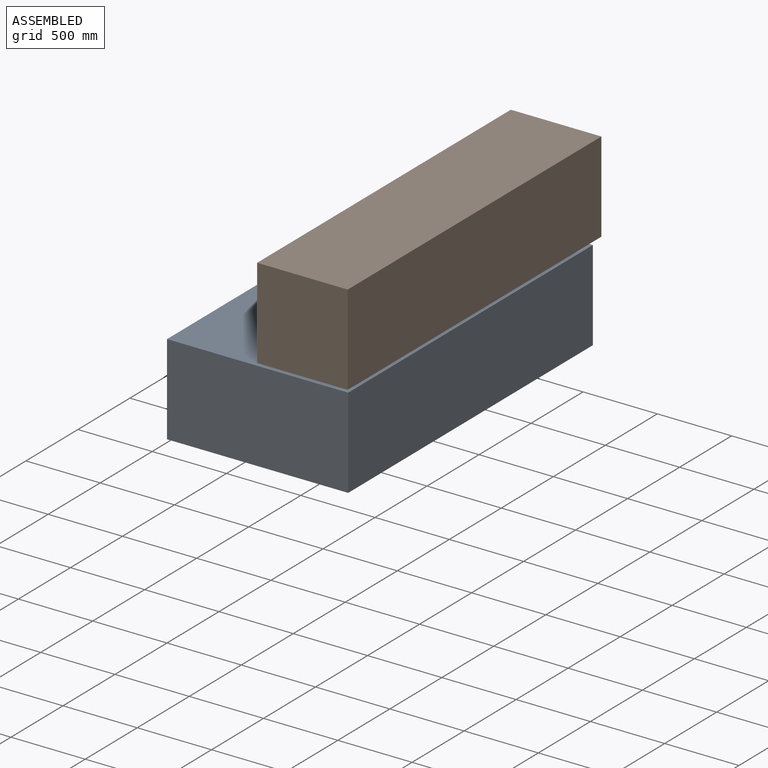
[diagram: assembled view]
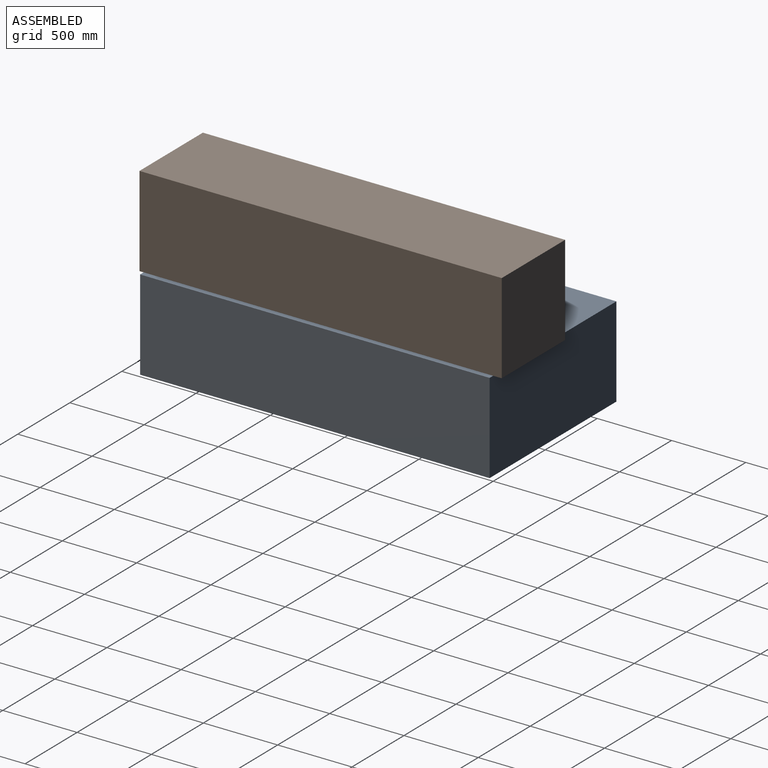
[diagram: assembled view, second angle]
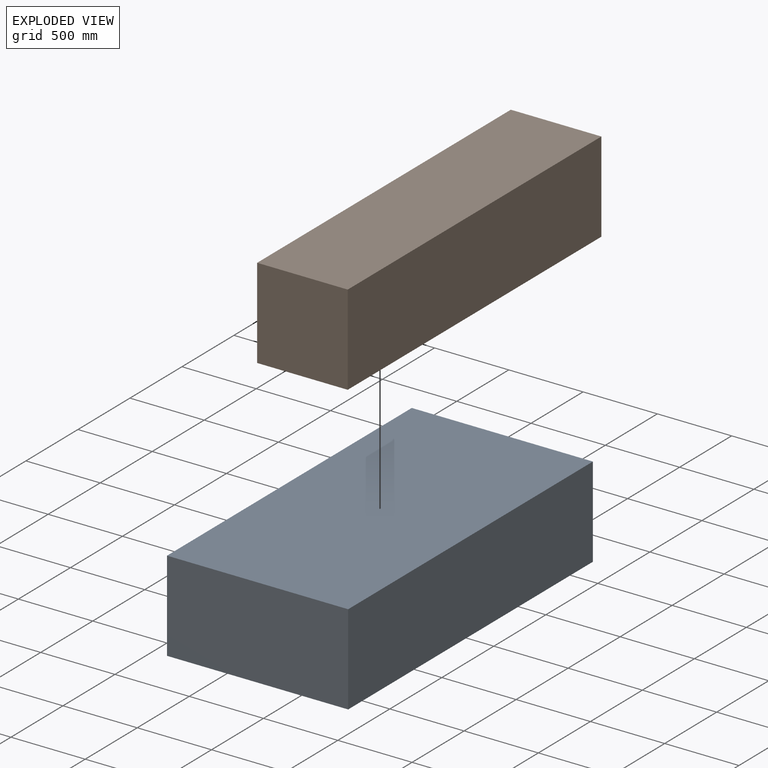
[diagram: exploded view]
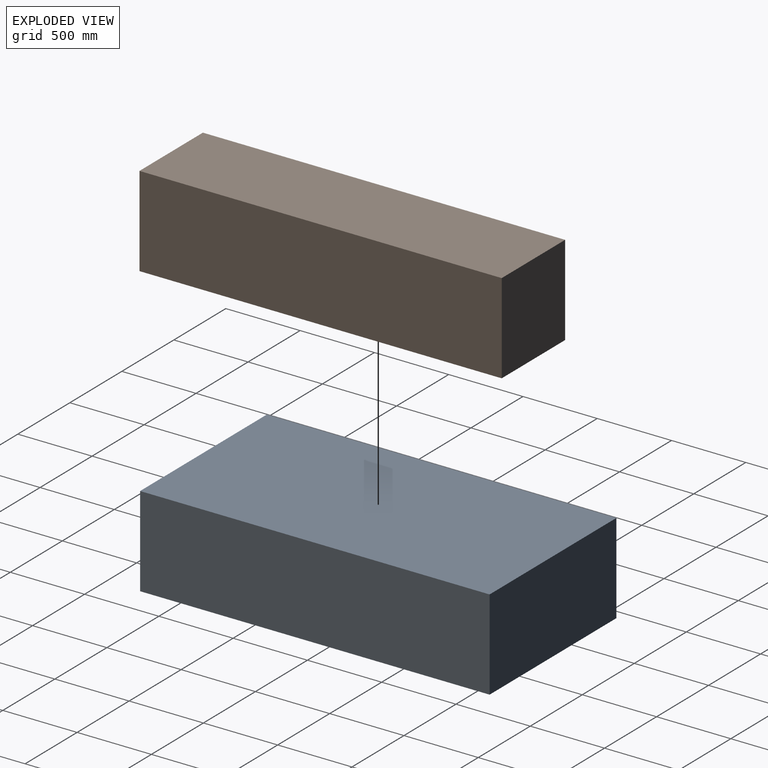
[diagram: exploded view, second angle]
ASSEMBLY  parts=2 mates=2
PART A: 6 faces, bbox 1219.2x2352.7x609.6 mm
  f0: plane 2352.68x1219.2mm, normal (0,0,1), area 2868381.4mm2, adj f1,f3,f4,f5
  f1: plane 2352.68x609.6mm, normal (-1,0,0), area 1434190.7mm2, adj f0,f2,f4,f5
  f2: plane 2352.68x1219.2mm, normal (0,0,-1), area 2868381.4mm2, adj f1,f3,f4,f5
  f3: plane 2352.68x609.6mm, normal (1,0,0), area 1434190.7mm2, adj f0,f2,f4,f5
  f4: plane 1219.2x609.6mm, normal (0,-1,0), area 743224.3mm2, adj f0,f1,f2,f3
  f5: plane 1219.2x609.6mm, normal (0,1,0), area 743224.3mm2, adj f0,f1,f2,f3
PART B: 6 faces, bbox 609.6x2438.4x609.6 mm
  f0: plane 2438.4x609.6mm, normal (0,0,1), area 1486448.6mm2, adj f1,f3,f4,f5
  f1: plane 2438.4x609.6mm, normal (-1,0,0), area 1486448.6mm2, adj f0,f2,f4,f5
  f2: plane 2438.4x609.6mm, normal (0,0,-1), area 1486448.6mm2, adj f1,f3,f4,f5
  f3: plane 2438.4x609.6mm, normal (1,0,0), area 1486448.6mm2, adj f0,f2,f4,f5
  f4: plane 609.6x609.6mm, normal (0,-1,0), area 371612.2mm2, adj f0,f1,f2,f3
  f5: plane 609.6x609.6mm, normal (0,1,0), area 371612.2mm2, adj f0,f1,f2,f3
PLACE A t=(-347.92,1636.46,-202.74)mm
PLACE B t=(261.68,1717.97,426.18)mm
MATE parallel A.f0 <-> B.f2  axis (0,0,1) through (261.68,460.12,406.86)mm
MATE planar B.f3 <-> A.f3  axis (1,0,0) through (871.28,498.77,426.18)mm
